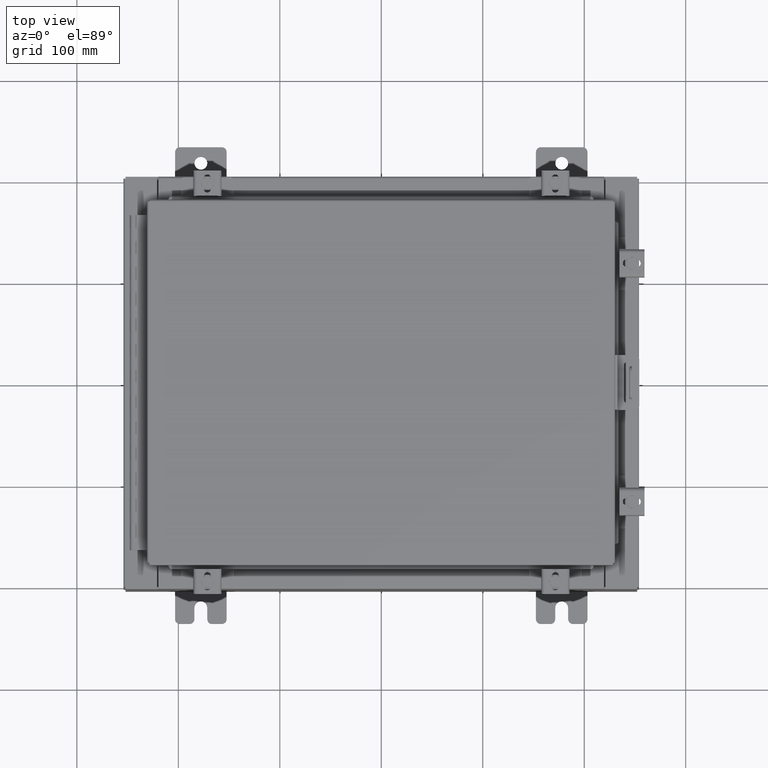
[diagram: clean part render]
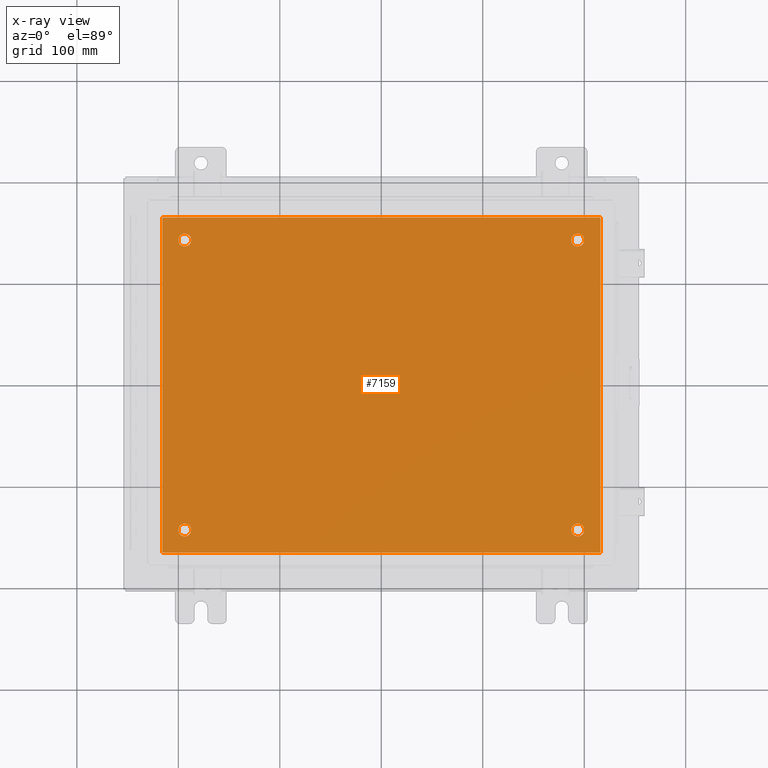
[diagram: x-ray — body ghosted, one internal face saturated and labeled with its STEP entity id]
A machine part, top view, then the same camera in x-ray: the body is ghosted and one INTERNAL B-rep face — a face not visible from any outside direction — is saturated and labeled: STEP entity #7159.
In plain terms, the highlighted planar face has unit normal (0, 0, -1).
Its self-contained STEP definition (entity closure, byte-faithful):
#9 = CIRCLE ( 'NONE', #15355, 0.2499999999999998100 ) ;
#40 = DIRECTION ( 'NONE',  ( -0.0000000000000000000, -0.0000000000000000000, 1.000000000000000000 ) ) ;
#120 = CARTESIAN_POINT ( 'NONE',  ( -8.499999999999996400, -6.500000000000000000, -0.1039999999999999800 ) ) ;
#262 = ORIENTED_EDGE ( 'NONE', *, *, #26417, .T. ) ;
#598 = CARTESIAN_POINT ( 'NONE',  ( -8.499999999999996400, -6.500000000000000000, -0.1039999999999999800 ) ) ;
#803 = VERTEX_POINT ( 'NONE', #25714 ) ;
#1233 = CARTESIAN_POINT ( 'NONE',  ( -7.375000000000000000, 5.625000000000000000, -0.1039999999999999800 ) ) ;
#1415 = ORIENTED_EDGE ( 'NONE', *, *, #22375, .F. ) ;
#1581 = FACE_BOUND ( 'NONE', #19805, .T. ) ;
#1634 = AXIS2_PLACEMENT_3D ( 'NONE', #3754, #9959, #21838 ) ;
#1670 = VECTOR ( 'NONE', #13192, 39.37007874015748100 ) ;
#1974 = EDGE_CURVE ( 'NONE', #7963, #2407, #12934, .T. ) ;
#2407 = VERTEX_POINT ( 'NONE', #3985 ) ;
#2868 = VECTOR ( 'NONE', #7357, 39.37007874015748100 ) ;
#2962 = EDGE_CURVE ( 'NONE', #21260, #18763, #12275, .T. ) ;
#3541 = EDGE_CURVE ( 'NONE', #14650, #5984, #19675, .T. ) ;
#3754 = CARTESIAN_POINT ( 'NONE',  ( 7.625000000000000000, -5.625000000000000000, -0.1039999999999999800 ) ) ;
#3985 = CARTESIAN_POINT ( 'NONE',  ( 7.874999999999998200, 5.625000000000000000, -0.1039999999999999800 ) ) ;
#4208 = LINE ( 'NONE', #26272, #9747 ) ;
#4366 = VERTEX_POINT ( 'NONE', #598 ) ;
#4856 = EDGE_CURVE ( 'NONE', #17511, #26046, #18803, .T. ) ;
#4876 = FACE_OUTER_BOUND ( 'NONE', #8179, .T. ) ;
#5219 = ORIENTED_EDGE ( 'NONE', *, *, #18280, .F. ) ;
#5628 = ORIENTED_EDGE ( 'NONE', *, *, #16644, .F. ) ;
#5660 = LINE ( 'NONE', #18127, #25207 ) ;
#5742 = CARTESIAN_POINT ( 'NONE',  ( -7.874999999999999100, -5.625000000000000000, -0.1039999999999999800 ) ) ;
#5748 = LINE ( 'NONE', #120, #1670 ) ;
#5984 = VERTEX_POINT ( 'NONE', #20552 ) ;
#6056 = EDGE_LOOP ( 'NONE', ( #21041, #10955 ) ) ;
#6396 = CIRCLE ( 'NONE', #1634, 0.2499999999999987000 ) ;
#6601 = CARTESIAN_POINT ( 'NONE',  ( 7.874999999999998200, -5.625000000000000000, -0.1039999999999999800 ) ) ;
#7159 = ADVANCED_FACE ( 'NONE', ( #22280, #22526, #23121, #1581, #4876 ), #15132, .T. ) ;
#7259 = AXIS2_PLACEMENT_3D ( 'NONE', #15392, #10700, #12541 ) ;
#7262 = EDGE_CURVE ( 'NONE', #21043, #8368, #25199, .T. ) ;
#7314 = AXIS2_PLACEMENT_3D ( 'NONE', #13414, #21111, #9202 ) ;
#7357 = DIRECTION ( 'NONE',  ( 0.0000000000000000000, 1.000000000000000000, 0.0000000000000000000 ) ) ;
#7742 = DIRECTION ( 'NONE',  ( -0.0000000000000000000, -0.0000000000000000000, 1.000000000000000000 ) ) ;
#7870 = CARTESIAN_POINT ( 'NONE',  ( -7.375000000000000000, -5.625000000000000000, -0.1039999999999999800 ) ) ;
#7963 = VERTEX_POINT ( 'NONE', #20658 ) ;
#8179 = EDGE_LOOP ( 'NONE', ( #13681, #5219, #5628, #1415 ) ) ;
#8368 = VERTEX_POINT ( 'NONE', #1233 ) ;
#8501 = CARTESIAN_POINT ( 'NONE',  ( -7.625000000000000000, -5.625000000000000000, -0.1039999999999999800 ) ) ;
#9202 = DIRECTION ( 'NONE',  ( -1.000000000000000000, 0.0000000000000000000, 0.0000000000000000000 ) ) ;
#9747 = VECTOR ( 'NONE', #12116, 39.37007874015748100 ) ;
#9782 = AXIS2_PLACEMENT_3D ( 'NONE', #11249, #12412, #26078 ) ;
#9959 = DIRECTION ( 'NONE',  ( -0.0000000000000000000, -0.0000000000000000000, 1.000000000000000000 ) ) ;
#10224 = ORIENTED_EDGE ( 'NONE', *, *, #4856, .T. ) ;
#10599 = EDGE_LOOP ( 'NONE', ( #262, #11769 ) ) ;
#10700 = DIRECTION ( 'NONE',  ( -0.0000000000000000000, -0.0000000000000000000, 1.000000000000000000 ) ) ;
#10955 = ORIENTED_EDGE ( 'NONE', *, *, #2962, .T. ) ;
#11249 = CARTESIAN_POINT ( 'NONE',  ( -7.625000000000000000, 5.625000000000000000, -0.1039999999999999800 ) ) ;
#11769 = ORIENTED_EDGE ( 'NONE', *, *, #1974, .T. ) ;
#11828 = DIRECTION ( 'NONE',  ( -1.000000000000000000, 0.0000000000000000000, 0.0000000000000000000 ) ) ;
#11864 = DIRECTION ( 'NONE',  ( -0.0000000000000000000, -0.0000000000000000000, 1.000000000000000000 ) ) ;
#11888 = CARTESIAN_POINT ( 'NONE',  ( -7.625000000000000000, 5.625000000000000000, -0.1039999999999999800 ) ) ;
#12116 = DIRECTION ( 'NONE',  ( -0.0000000000000000000, -1.000000000000000000, -0.0000000000000000000 ) ) ;
#12275 = CIRCLE ( 'NONE', #7259, 0.2499999999999987000 ) ;
#12327 = EDGE_CURVE ( 'NONE', #26046, #17511, #9, .T. ) ;
#12412 = DIRECTION ( 'NONE',  ( -0.0000000000000000000, -0.0000000000000000000, 1.000000000000000000 ) ) ;
#12541 = DIRECTION ( 'NONE',  ( -1.000000000000000000, 0.0000000000000000000, 0.0000000000000000000 ) ) ;
#12934 = CIRCLE ( 'NONE', #14665, 0.2499999999999987000 ) ;
#13126 = CARTESIAN_POINT ( 'NONE',  ( 8.500000000000003600, -6.500000000000000000, -0.1039999999999999800 ) ) ;
#13192 = DIRECTION ( 'NONE',  ( 1.000000000000000000, 0.0000000000000000000, 0.0000000000000000000 ) ) ;
#13414 = CARTESIAN_POINT ( 'NONE',  ( 7.625000000000000000, 5.625000000000000000, -0.1039999999999999800 ) ) ;
#13681 = ORIENTED_EDGE ( 'NONE', *, *, #3541, .F. ) ;
#14650 = VERTEX_POINT ( 'NONE', #13126 ) ;
#14665 = AXIS2_PLACEMENT_3D ( 'NONE', #17921, #7742, #17897 ) ;
#14678 = DIRECTION ( 'NONE',  ( -1.000000000000000000, 0.0000000000000000000, -0.0000000000000000000 ) ) ;
#14958 = CARTESIAN_POINT ( 'NONE',  ( 0.0000000000000000000, 0.0000000000000000000, -0.1039999999999999800 ) ) ;
#15132 = PLANE ( 'NONE',  #20858 ) ;
#15355 = AXIS2_PLACEMENT_3D ( 'NONE', #8501, #40, #26581 ) ;
#15392 = CARTESIAN_POINT ( 'NONE',  ( 7.625000000000000000, -5.625000000000000000, -0.1039999999999999800 ) ) ;
#15431 = DIRECTION ( 'NONE',  ( -1.000000000000000000, -0.0000000000000000000, -0.0000000000000000000 ) ) ;
#15944 = CIRCLE ( 'NONE', #9782, 0.2499999999999998100 ) ;
#16022 = ORIENTED_EDGE ( 'NONE', *, *, #17196, .T. ) ;
#16198 = DIRECTION ( 'NONE',  ( 0.0000000000000000000, 0.0000000000000000000, -1.000000000000000000 ) ) ;
#16644 = EDGE_CURVE ( 'NONE', #803, #4366, #4208, .T. ) ;
#17196 = EDGE_CURVE ( 'NONE', #8368, #21043, #15944, .T. ) ;
#17511 = VERTEX_POINT ( 'NONE', #5742 ) ;
#17540 = CARTESIAN_POINT ( 'NONE',  ( -7.874999999999999100, 5.625000000000000000, -0.1039999999999999800 ) ) ;
#17723 = CIRCLE ( 'NONE', #7314, 0.2499999999999987000 ) ;
#17897 = DIRECTION ( 'NONE',  ( -1.000000000000000000, 0.0000000000000000000, 0.0000000000000000000 ) ) ;
#17921 = CARTESIAN_POINT ( 'NONE',  ( 7.625000000000000000, 5.625000000000000000, -0.1039999999999999800 ) ) ;
#17937 = EDGE_CURVE ( 'NONE', #18763, #21260, #6396, .T. ) ;
#18113 = ORIENTED_EDGE ( 'NONE', *, *, #7262, .T. ) ;
#18127 = CARTESIAN_POINT ( 'NONE',  ( -8.499999999999996400, 6.500000000000000000, -0.1039999999999999800 ) ) ;
#18280 = EDGE_CURVE ( 'NONE', #4366, #14650, #5748, .T. ) ;
#18763 = VERTEX_POINT ( 'NONE', #6601 ) ;
#18803 = CIRCLE ( 'NONE', #19842, 0.2499999999999998100 ) ;
#19585 = CARTESIAN_POINT ( 'NONE',  ( 7.375000000000000900, -5.625000000000000000, -0.1039999999999999800 ) ) ;
#19675 = LINE ( 'NONE', #20711, #2868 ) ;
#19805 = EDGE_LOOP ( 'NONE', ( #16022, #18113 ) ) ;
#19842 = AXIS2_PLACEMENT_3D ( 'NONE', #24653, #25366, #25213 ) ;
#20552 = CARTESIAN_POINT ( 'NONE',  ( 8.500000000000003600, 6.500000000000000000, -0.1039999999999999800 ) ) ;
#20658 = CARTESIAN_POINT ( 'NONE',  ( 7.375000000000000900, 5.625000000000000000, -0.1039999999999999800 ) ) ;
#20711 = CARTESIAN_POINT ( 'NONE',  ( 8.500000000000003600, -6.500000000000000000, -0.1039999999999999800 ) ) ;
#20858 = AXIS2_PLACEMENT_3D ( 'NONE', #14958, #16198, #14678 ) ;
#21007 = AXIS2_PLACEMENT_3D ( 'NONE', #11888, #11864, #11828 ) ;
#21041 = ORIENTED_EDGE ( 'NONE', *, *, #17937, .T. ) ;
#21043 = VERTEX_POINT ( 'NONE', #17540 ) ;
#21111 = DIRECTION ( 'NONE',  ( -0.0000000000000000000, -0.0000000000000000000, 1.000000000000000000 ) ) ;
#21260 = VERTEX_POINT ( 'NONE', #19585 ) ;
#21838 = DIRECTION ( 'NONE',  ( -1.000000000000000000, 0.0000000000000000000, 0.0000000000000000000 ) ) ;
#22280 = FACE_BOUND ( 'NONE', #25563, .T. ) ;
#22375 = EDGE_CURVE ( 'NONE', #5984, #803, #5660, .T. ) ;
#22526 = FACE_BOUND ( 'NONE', #6056, .T. ) ;
#22570 = ORIENTED_EDGE ( 'NONE', *, *, #12327, .T. ) ;
#23121 = FACE_BOUND ( 'NONE', #10599, .T. ) ;
#24653 = CARTESIAN_POINT ( 'NONE',  ( -7.625000000000000000, -5.625000000000000000, -0.1039999999999999800 ) ) ;
#25199 = CIRCLE ( 'NONE', #21007, 0.2499999999999998100 ) ;
#25207 = VECTOR ( 'NONE', #15431, 39.37007874015748100 ) ;
#25213 = DIRECTION ( 'NONE',  ( -1.000000000000000000, 0.0000000000000000000, 0.0000000000000000000 ) ) ;
#25366 = DIRECTION ( 'NONE',  ( -0.0000000000000000000, -0.0000000000000000000, 1.000000000000000000 ) ) ;
#25563 = EDGE_LOOP ( 'NONE', ( #22570, #10224 ) ) ;
#25714 = CARTESIAN_POINT ( 'NONE',  ( -8.499999999999996400, 6.500000000000000000, -0.1039999999999999800 ) ) ;
#26046 = VERTEX_POINT ( 'NONE', #7870 ) ;
#26078 = DIRECTION ( 'NONE',  ( -1.000000000000000000, 0.0000000000000000000, 0.0000000000000000000 ) ) ;
#26272 = CARTESIAN_POINT ( 'NONE',  ( -8.499999999999996400, -6.500000000000000000, -0.1039999999999999800 ) ) ;
#26417 = EDGE_CURVE ( 'NONE', #2407, #7963, #17723, .T. ) ;
#26581 = DIRECTION ( 'NONE',  ( -1.000000000000000000, 0.0000000000000000000, 0.0000000000000000000 ) ) ;